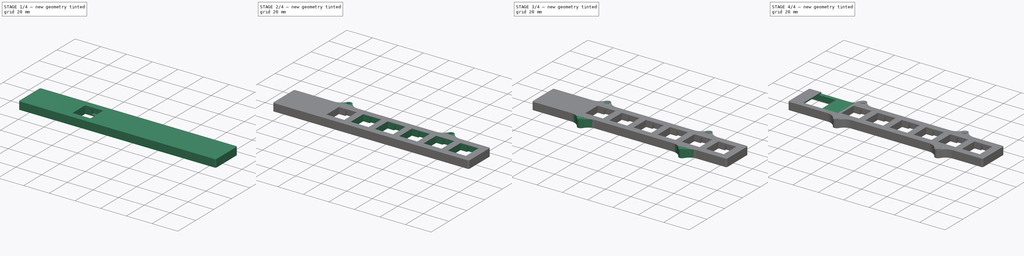
[diagram: build sequence overview — one tinted view per stage of 4, left to right]
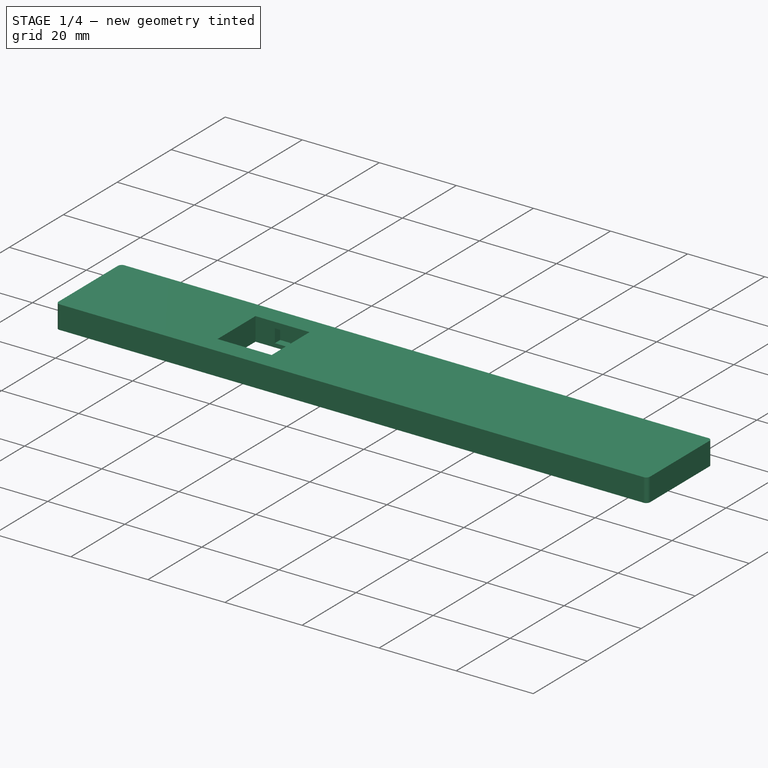
[diagram: stage 1 of 4 — iso view after this stage's code; geometry added in this stage tinted green]
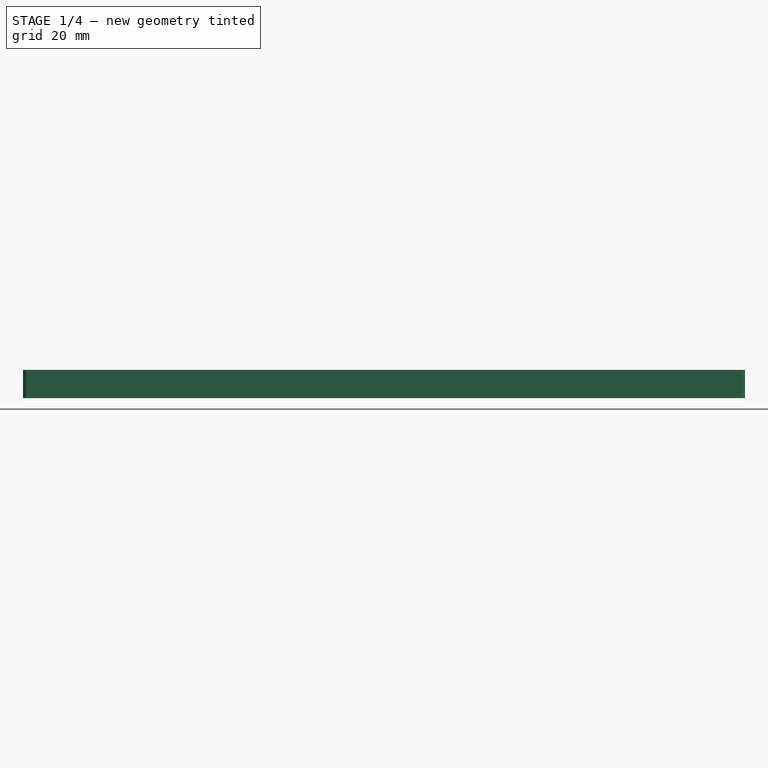
[diagram: stage 1 of 4 — front view after this stage's code; geometry added in this stage tinted green]
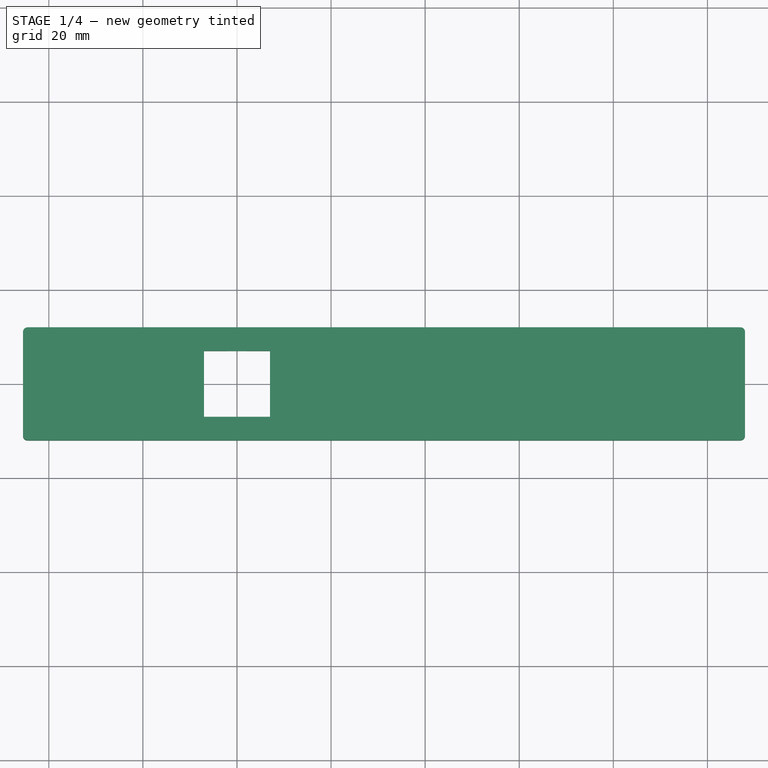
[diagram: stage 1 of 4 — top view after this stage's code; geometry added in this stage tinted green]
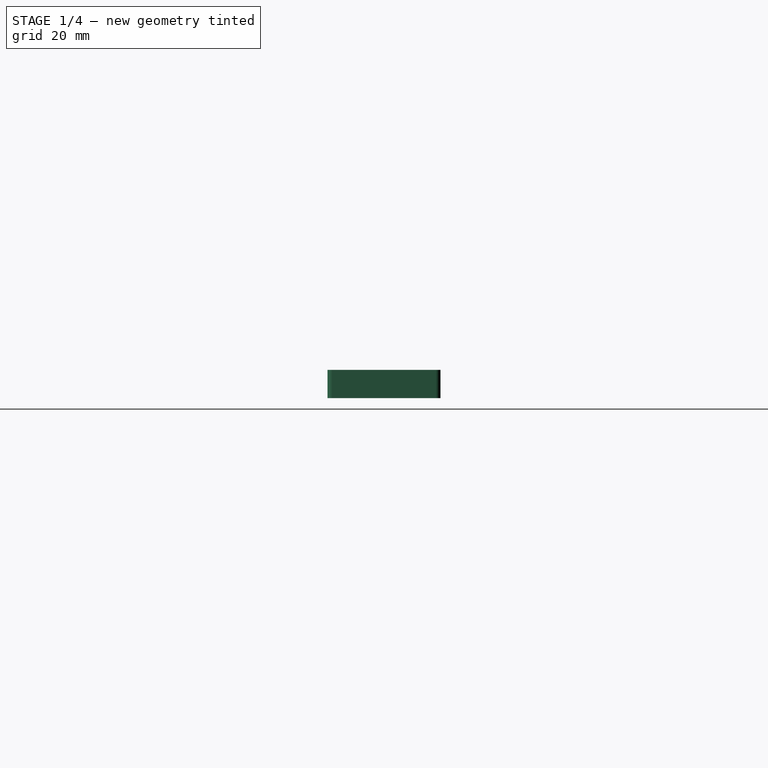
[diagram: stage 1 of 4 — right view after this stage's code; geometry added in this stage tinted green]
FCSTD DOCUMENT  (FreeCAD 1.0R39109 (Git))
Label: Plate
License: All rights reserved
LicenseURL: http://en.wikipedia.org/wiki/All_rights_reserved
objects: Sketcher::SketchObject×9, PartDesign::Pocket×6, PartDesign::Pad×2, PartDesign::LinearPattern×1, PartDesign::Mirrored×1, PartDesign::Chamfer×1, PartDesign::Body×1
note: 50 computed .brp shape members not serialized (recipe doc carries the construction recipe); baked Part::Feature solids carry a one-line shape summary decoded from their .brp

FEATURE [Sketcher::SketchObject] Sketch
  ArcFitTolerance = 0
  AttachmentSupport = -> [XY_Plane]
  FullyConstrained = true
  MakeInternals = false
  MapMode = 5
  sketch-geometry (9):
    g0: LineSegment StartX=-45.5 StartY=11 StartZ=0 EndX=-45.5 EndY=-11 EndZ=0
    g1: LineSegment StartX=-44.5 StartY=-12 StartZ=0 EndX=107 EndY=-12 EndZ=0
    g2: LineSegment StartX=-44.5 StartY=12 StartZ=0 EndX=107 EndY=12 EndZ=0
    g3: LineSegment StartX=108 StartY=11 StartZ=0 EndX=108 EndY=-11 EndZ=0
    g4: ArcOfCircle CenterX=-44.5 CenterY=11 CenterZ=0 NormalX=0 NormalY=0 NormalZ=1 AngleXU=0 Radius=1 StartAngle=1.5708 EndAngle=3.14159
    g5: ArcOfCircle CenterX=-44.5 CenterY=-11 CenterZ=0 NormalX=0 NormalY=0 NormalZ=1 AngleXU=0 Radius=1 StartAngle=3.14159 EndAngle=4.71239
    g6: ArcOfCircle CenterX=107 CenterY=-11 CenterZ=0 NormalX=0 NormalY=0 NormalZ=1 AngleXU=0 Radius=1 StartAngle=4.71239 EndAngle=6.28319
    g7: ArcOfCircle CenterX=107 CenterY=11 CenterZ=0 NormalX=0 NormalY=0 NormalZ=1 AngleXU=0 Radius=1 StartAngle=4e-16 EndAngle=1.5708
    g8: GeomPoint [constr] X=-45.5 Y=0 Z=0
  constraints (21):
    c: Vertical(g0)
    c: Horizontal(g1)
    c: Horizontal(g2)
    c: Vertical(g3)
    c: Tangent(g7,g2) = 1.5708
    c: Tangent(g7,g3) = 1.5708
    c: Tangent(g6,g1) = -1.5708
    c: Tangent(g5,g0) = -1.5708
    c: Tangent(g4,g2) = 1.5708
    c: Tangent(g5,g1) = -1.5708
    c: Radius(g4) = 1
    c: Tangent(g4,g0) = -1.5708
    c: Equal(g5,g4)
    c: Tangent(g6,g3) = 1.5708
    c: Equal(g4,g7)
    c: Equal(g4,g6)
    c: DistanceY(g1,g2) = 24
    c: Symmetric(g0,g0,g8)
    c: PointOnObject(g8,g-1)
    c: DistanceX(g8,g-1) = 45.5
    c: DistanceX(g-1,g6) = 107
FEATURE [PartDesign::Pad] Pad  label="Plate"
  Direction = (0,0,1)
  Length = 5
  Length2 = 1
  Profile = -> Sketch
  ReferenceAxis = -> Sketch [N_Axis]
  Suppressed = false
  Type = 4
FEATURE [Sketcher::SketchObject] Sketch001
  ArcFitTolerance = 0
  AttachmentSupport = -> [XY_Plane]
  FullyConstrained = true
  MakeInternals = false
  MapMode = 5
  sketch-geometry (4):
    g0: LineSegment StartX=-7.025 StartY=7.025 StartZ=0 EndX=7.025 EndY=7.025 EndZ=0
    g1: LineSegment StartX=7.025 StartY=7.025 StartZ=0 EndX=7.025 EndY=-7.025 EndZ=0
    g2: LineSegment StartX=7.025 StartY=-7.025 StartZ=0 EndX=-7.025 EndY=-7.025 EndZ=0
    g3: LineSegment StartX=-7.025 StartY=-7.025 StartZ=0 EndX=-7.025 EndY=7.025 EndZ=0
  constraints (10):
    c: Coincident(g0,g1)
    c: Coincident(g1,g2)
    c: Coincident(g2,g3)
    c: Coincident(g3,g0)
    c: Horizontal(g0)
    c: Vertical(g1)
    c: Symmetric(g0,g2,g-1)
    c: Symmetric(g2,g1,g-2)
    c: DistanceX(g2,g2) = 14.05
    c: Equal(g3,g2)
FEATURE [PartDesign::Pocket] Pocket  label="SwitchCutout"
  BaseFeature = -> Pad
  Direction = (0,0,-1)
  Length = 5
  Length2 = 5
  Midplane = true
  Profile = -> Sketch001
  ReferenceAxis = -> Sketch001 [N_Axis]
  Suppressed = false
  Type = 1
FEATURE [Sketcher::SketchObject] Sketch002
  ArcFitTolerance = 0
  AttachmentSupport = -> [XY_Plane]
  FullyConstrained = true
  MakeInternals = false
  MapMode = 5
  sketch-geometry (9):
    g0: LineSegment StartX=-43.6 StartY=9.1 StartZ=0 EndX=-43.6 EndY=-9.1 EndZ=0
    g1: LineSegment StartX=-42.6 StartY=-10.1 StartZ=0 EndX=104.1 EndY=-10.1 EndZ=0
    g2: LineSegment StartX=-42.6 StartY=10.1 StartZ=0 EndX=104.1 EndY=10.1 EndZ=0
    g3: LineSegment StartX=105.1 StartY=9.1 StartZ=0 EndX=105.1 EndY=-9.1 EndZ=0
    g4: ArcOfCircle CenterX=-42.6 CenterY=9.1 CenterZ=0 NormalX=0 NormalY=0 NormalZ=1 AngleXU=0 Radius=1 StartAngle=1.5708 EndAngle=3.14159
    g5: ArcOfCircle CenterX=-42.6 CenterY=-9.1 CenterZ=0 NormalX=0 NormalY=0 NormalZ=1 AngleXU=0 Radius=1 StartAngle=3.14159 EndAngle=4.71239
    g6: ArcOfCircle CenterX=104.1 CenterY=-9.1 CenterZ=0 NormalX=0 NormalY=0 NormalZ=1 AngleXU=0 Radius=1 StartAngle=4.71239 EndAngle=6.28319
    g7: ArcOfCircle CenterX=104.1 CenterY=9.1 CenterZ=0 NormalX=0 NormalY=0 NormalZ=1 AngleXU=0 Radius=1 StartAngle=1.23436e-11 EndAngle=1.5708
    g8: GeomPoint [constr] X=-43.6 Y=0 Z=0
  constraints (21):
    c: Vertical(g0)
    c: Horizontal(g1)
    c: Horizontal(g2)
    c: Vertical(g3)
    c: Tangent(g7,g2) = 1.5708
    c: Tangent(g7,g3) = 1.5708
    c: Tangent(g6,g1) = -1.5708
    c: Tangent(g5,g0) = -1.5708
    c: Tangent(g4,g2) = 1.5708
    c: Tangent(g5,g1) = -1.5708
    c: Radius(g4) = 1
    c: Tangent(g4,g0) = -1.5708
    c: Equal(g5,g4)
    c: Tangent(g6,g3) = 1.5708
    c: Equal(g4,g7)
    c: Equal(g4,g6)
    c: DistanceY(g1,g2) = 20.2
    c: Symmetric(g0,g0,g8)
    c: PointOnObject(g8,g-1)
    c: DistanceX(g8,g-1) = 43.6
    c: DistanceX(g-1,g3) = 105.1
FEATURE [Sketcher::SketchObject] Sketch003  label="OledFpc"
  ArcFitTolerance = 0
  AttachmentSupport = -> [XY_Plane]
  FullyConstrained = true
  MakeInternals = false
  MapMode = 5
  sketch-geometry (5):
    g0: LineSegment StartX=-30.35 StartY=0 StartZ=0 EndX=-14.65 EndY=0 EndZ=0
    g1: LineSegment StartX=-14.65 StartY=0 StartZ=0 EndX=-14.65 EndY=-50 EndZ=0
    g2: LineSegment StartX=-14.65 StartY=-50 StartZ=0 EndX=-30.35 EndY=-50 EndZ=0
    g3: LineSegment StartX=-30.35 StartY=-50 StartZ=0 EndX=-30.35 EndY=0 EndZ=0
    g4: GeomPoint [constr] X=-22.5 Y=0 Z=0
  constraints (13):
    c: Coincident(g0,g1)
    c: Coincident(g1,g2)
    c: Coincident(g2,g3)
    c: Coincident(g3,g0)
    c: Horizontal(g0)
    c: Horizontal(g2)
    c: Vertical(g1)
    c: Vertical(g3)
    c: PointOnObject(g0,g-1)
    c: DistanceY(g1,g1) = 50
    c: DistanceX(g2,g2) = 15.7
    c: Symmetric(g0,g0,g4)
    c: DistanceX(g4,g-1) = 22.5
FEATURE [Sketcher::SketchObject] Sketch004
  ArcFitTolerance = 0
  AttachmentSupport = -> [XY_Plane]
  FullyConstrained = true
  MakeInternals = false
  MapMode = 5
  sketch-geometry (4):
    g0: LineSegment StartX=-2 StartY=9 StartZ=0 EndX=2 EndY=9 EndZ=0
    g1: LineSegment StartX=2 StartY=9 StartZ=0 EndX=2 EndY=-9 EndZ=0
    g2: LineSegment StartX=2 StartY=-9 StartZ=0 EndX=-2 EndY=-9 EndZ=0
    g3: LineSegment StartX=-2 StartY=-9 StartZ=0 EndX=-2 EndY=9 EndZ=0
  constraints (10):
    c: Coincident(g0,g1)
    c: Coincident(g1,g2)
    c: Coincident(g2,g3)
    c: Coincident(g3,g0)
    c: Horizontal(g0)
    c: Vertical(g1)
    c: Symmetric(g0,g2,g-1)
    c: Symmetric(g2,g1,g-2)
    c: DistanceX(g2,g2) = 4
    c: DistanceY(g3,g3) = 18
FEATURE [PartDesign::Pocket] Pocket002  label="KeyClipPocket"
  BaseFeature = -> Pocket
  Direction = (0,0,-1)
  Length = 3.5
  Length2 = 5
  Profile = -> Sketch004
  ReferenceAxis = -> Sketch004 [N_Axis]
  Refine = true
  Reversed = true
  Suppressed = false
  Type = 0
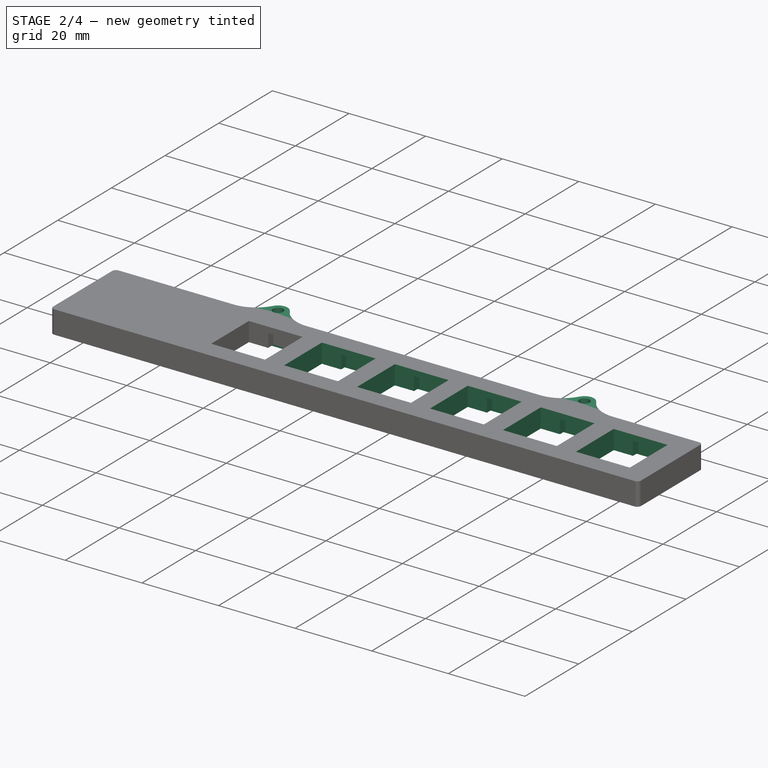
[diagram: stage 2 of 4 — iso view after this stage's code; geometry added in this stage tinted green]
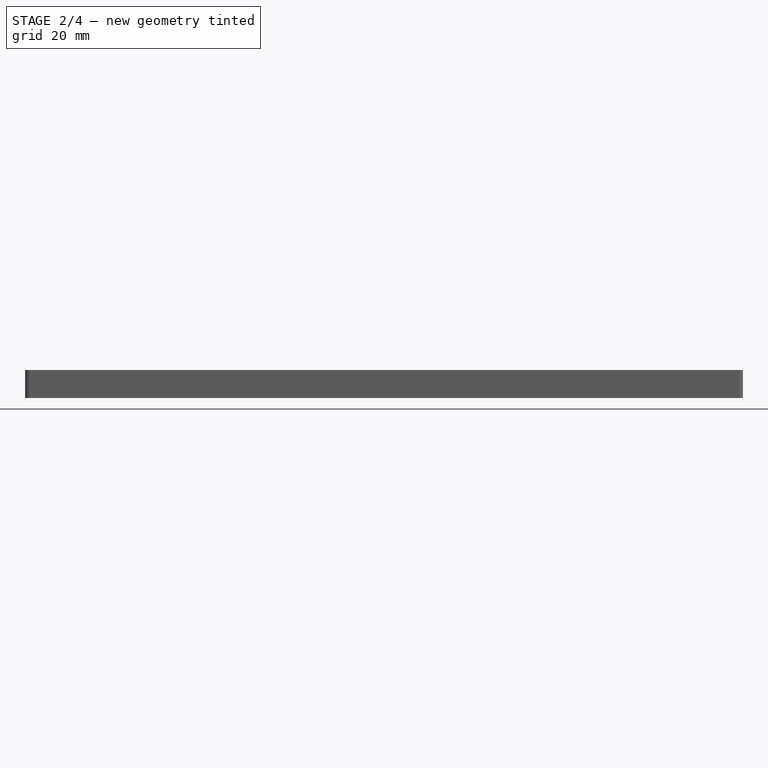
[diagram: stage 2 of 4 — front view after this stage's code; geometry added in this stage tinted green]
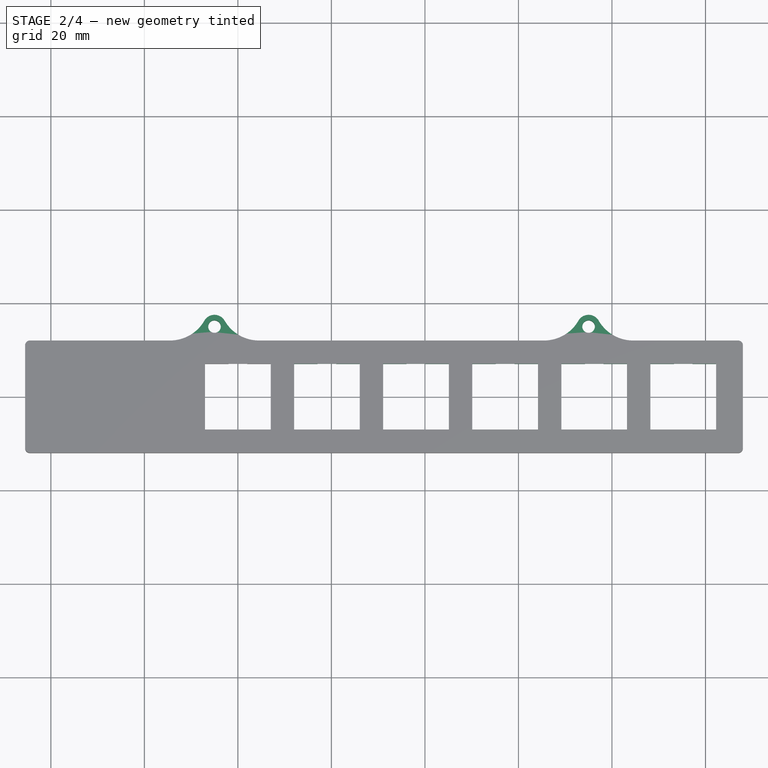
[diagram: stage 2 of 4 — top view after this stage's code; geometry added in this stage tinted green]
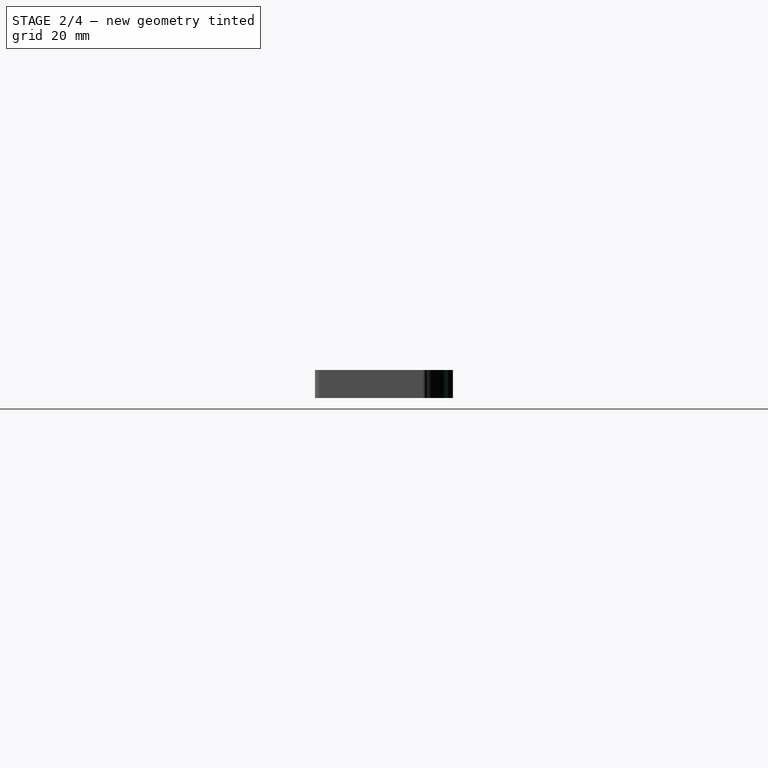
[diagram: stage 2 of 4 — right view after this stage's code; geometry added in this stage tinted green]
FEATURE [PartDesign::LinearPattern] LinearPattern
  BaseFeature = -> Pocket002
  Direction = -> Sketch001 [H_Axis]
  Length = 95.25
  Mode = 0
  Occurrences = 6
  Offset = 19.05
  Originals = -> [Pocket,Pocket002]
  Suppressed = false
  TransformMode = 0
FEATURE [PartDesign::Pocket] Pocket001  label="BoardPocket"
  BaseFeature = -> LinearPattern
  Direction = (0,0,-1)
  Length = 5
  Length2 = 5
  Profile = -> Sketch002
  ReferenceAxis = -> Sketch002 [N_Axis]
  Suppressed = false
  Type = 1
FEATURE [Sketcher::SketchObject] Sketch005
  ArcFitTolerance = 1e-06
  AttachmentSupport = -> [XY_Plane]
  FullyConstrained = true
  MakeInternals = false
  MapMode = 5
  sketch-geometry (13):
    g0: Circle CenterX=75 CenterY=15 CenterZ=0 NormalX=0 NormalY=0 NormalZ=1 AngleXU=0 Radius=1.35
    g1: GeomPoint X=105 Y=12 Z=0
    g2: LineSegment StartX=65.4737 StartY=12 StartZ=0 EndX=84.5263 EndY=12 EndZ=0
    g3: ArcOfCircle CenterX=75 CenterY=15 CenterZ=0 NormalX=0 NormalY=0 NormalZ=1 AngleXU=0 Radius=2.5 StartAngle=0.523599 EndAngle=2.61799
    g4: ArcOfCircle CenterX=65.4737 CenterY=20.5 CenterZ=0 NormalX=0 NormalY=0 NormalZ=1 AngleXU=0 Radius=8.5 StartAngle=4.71239 EndAngle=5.75959
    g5: ArcOfCircle CenterX=84.5263 CenterY=20.5 CenterZ=0 NormalX=0 NormalY=0 NormalZ=1 AngleXU=0 Radius=8.5 StartAngle=3.66519 EndAngle=4.71239
    g6: LineSegment [constr] StartX=75 StartY=15 StartZ=0 EndX=72.8349 EndY=16.25 EndZ=0
    g7: LineSegment StartX=-14.5263 StartY=12 StartZ=0 EndX=4.52628 EndY=12 EndZ=0
    g8: Circle CenterX=-5 CenterY=15 CenterZ=0 NormalX=0 NormalY=0 NormalZ=1 AngleXU=0 Radius=1.35
    g9: ArcOfCircle CenterX=-5 CenterY=15 CenterZ=0 NormalX=0 NormalY=0 NormalZ=1 AngleXU=0 Radius=2.5 StartAngle=0.523599 EndAngle=2.61799
    g10: ArcOfCircle CenterX=-14.5263 CenterY=20.5 CenterZ=0 NormalX=0 NormalY=0 NormalZ=1 AngleXU=0 Radius=8.5 StartAngle=4.71239 EndAngle=5.75959
    g11: ArcOfCircle CenterX=4.52628 CenterY=20.5 CenterZ=0 NormalX=0 NormalY=0 NormalZ=1 AngleXU=0 Radius=8.5 StartAngle=3.66519 EndAngle=4.71239
    g12: LineSegment [constr] StartX=-5 StartY=15 StartZ=0 EndX=75 EndY=15 EndZ=0
  constraints (32):
    c: Horizontal(g2)
    c: Coincident(g3,g0)
    c: Tangent(g4,g2) = -1.5708
    c: Tangent(g5,g2) = -1.5708
    c: Tangent(g4,g3) = 1.5708
    c: Tangent(g5,g3) = 1.5708
    c: Diameter(g0) = 2.7
    c: Diameter(g3) = 5
    c: Equal(g4,g5)
    c: Coincident(g6,g0)
    c: Coincident(g6,g3)
    c: Angle(g6,g2) = 0.523599
    c: PointOnObject(g1,g2)
    c: DistanceX(g0,g1) = 30
    c: DistanceX(g-1,g1) = 105
    c: Horizontal(g7)
    c: Coincident(g9,g8)
    c: Tangent(g11,g9) = 1.5708
    c: Tangent(g10,g9) = 1.5708
    c: Tangent(g10,g7) = -1.5708
    c: Tangent(g11,g7) = -1.5708
    c: Equal(g9,g3)
    c: Equal(g8,g0)
    c: Equal(g7,g2)
    c: Equal(g11,g5)
    c: Equal(g10,g11)
    c: DistanceY(g-1,g0) = 15
    c: Coincident(g12,g8)
    c: Coincident(g12,g0)
    c: Horizontal(g12)
    c: DistanceX(g8,g0) = 80
    c: DistanceY(g-1,g7) = 12
FEATURE [PartDesign::Pad] Pad001  label="MountingWingPocket"
  BaseFeature = -> Pocket001
  Direction = (0,0,1)
  Length = 5
  Length2 = 1
  Profile = -> Sketch005
  ReferenceAxis = -> Sketch005 [N_Axis]
  Refine = true
  Suppressed = false
  Type = 4
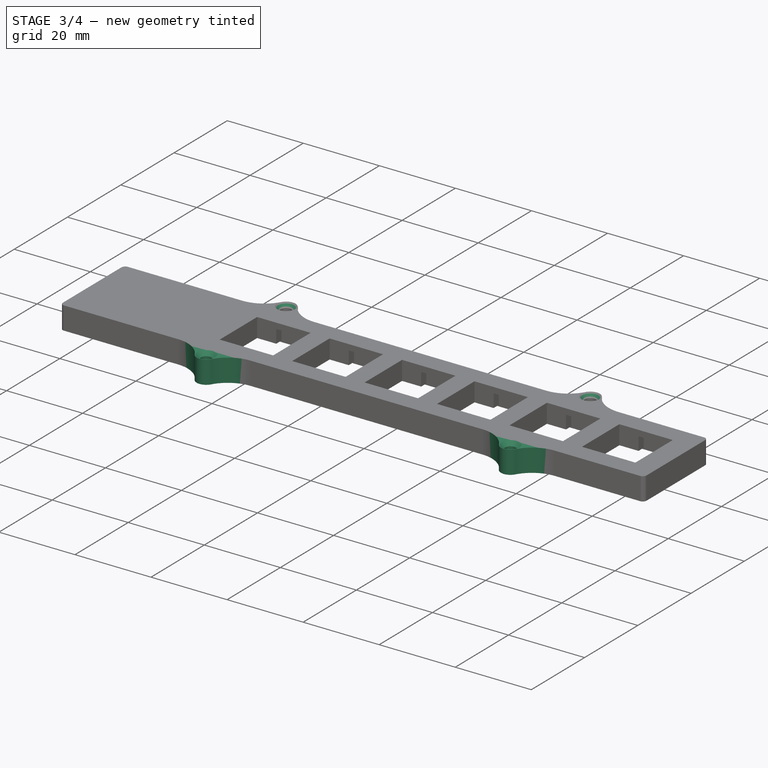
[diagram: stage 3 of 4 — iso view after this stage's code; geometry added in this stage tinted green]
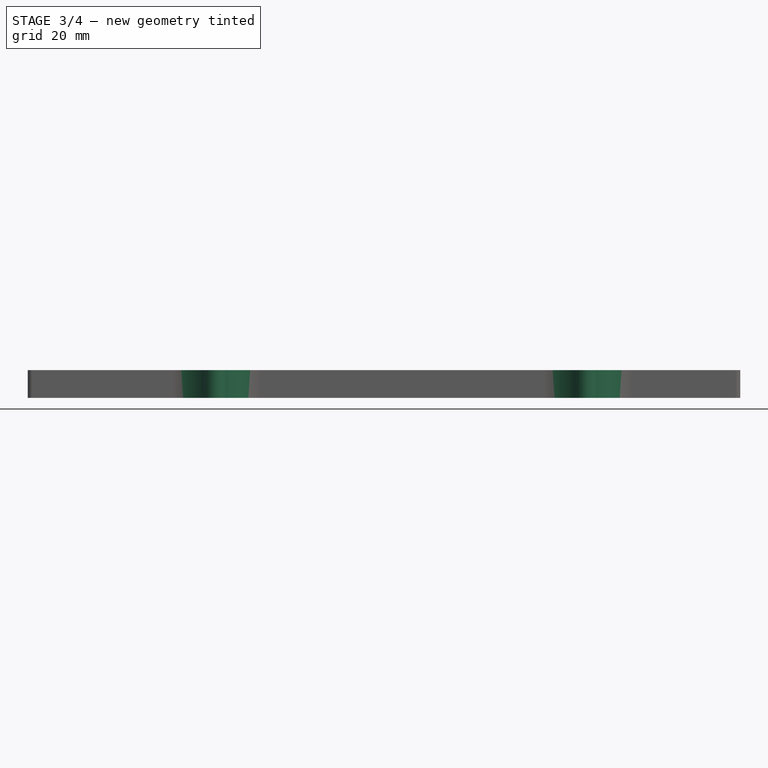
[diagram: stage 3 of 4 — front view after this stage's code; geometry added in this stage tinted green]
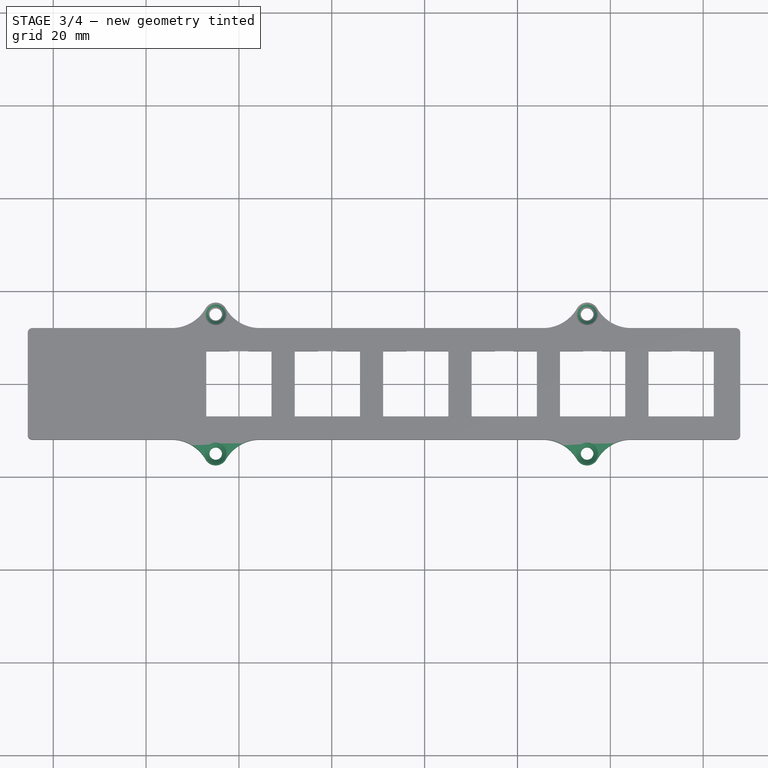
[diagram: stage 3 of 4 — top view after this stage's code; geometry added in this stage tinted green]
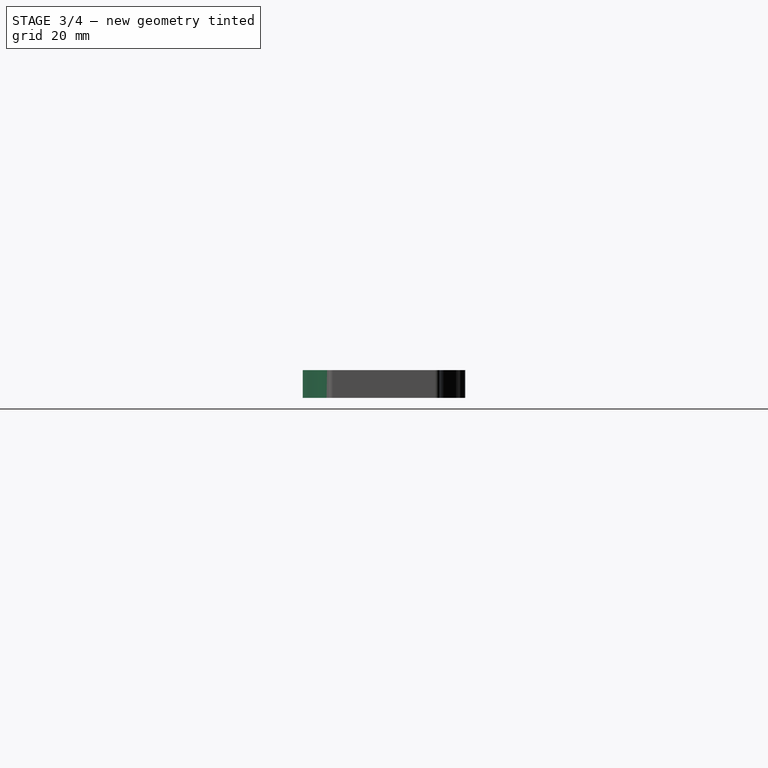
[diagram: stage 3 of 4 — right view after this stage's code; geometry added in this stage tinted green]
FEATURE [PartDesign::Mirrored] Mirrored
  BaseFeature = -> Pad001
  MirrorPlane = -> XZ_Plane
  Originals = -> [Pad001]
  Refine = true
  Suppressed = false
  TransformMode = 0
FEATURE [PartDesign::Chamfer] Chamfer
  Angle = 45
  Base = -> Mirrored [Edge322,Edge318,Edge320,Edge324]
  BaseFeature = -> Mirrored
  ChamferType = 0
  FlipDirection = false
  Refine = true
  Size = 1
  Size2 = 1
  SupportTransform = false
  Suppressed = false
  UseAllEdges = false
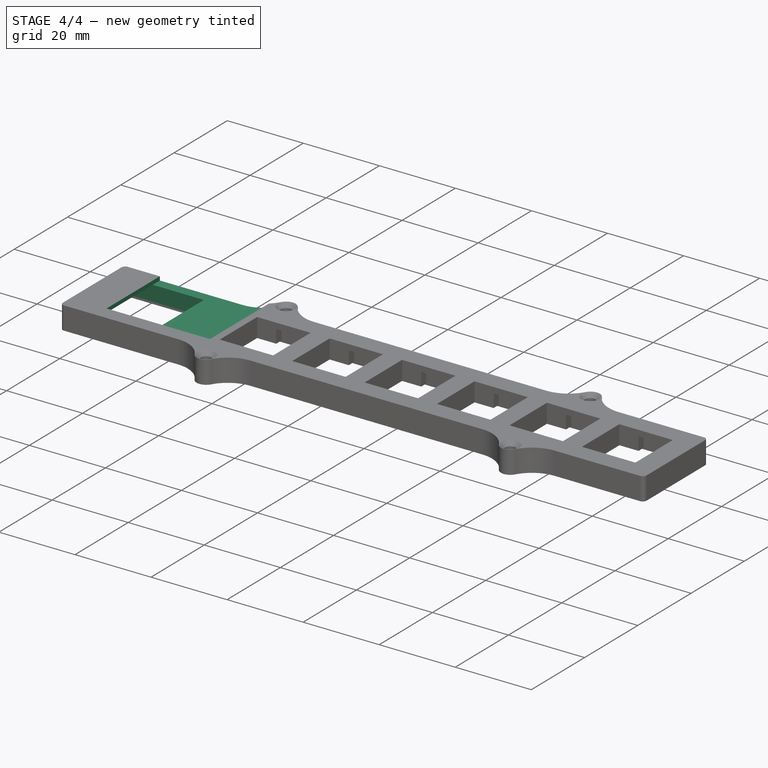
[diagram: stage 4 of 4 — iso view after this stage's code; geometry added in this stage tinted green]
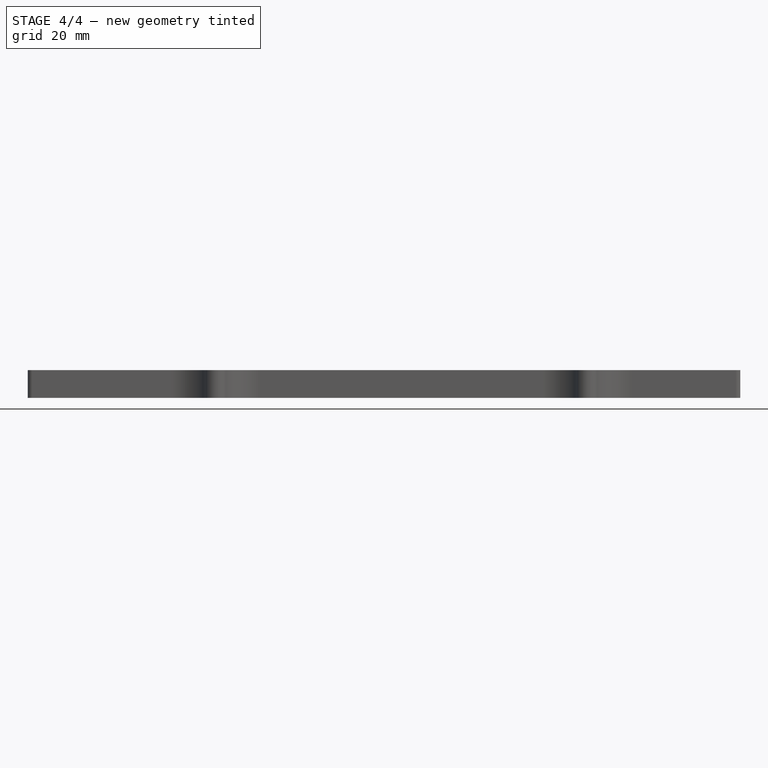
[diagram: stage 4 of 4 — front view after this stage's code; geometry added in this stage tinted green]
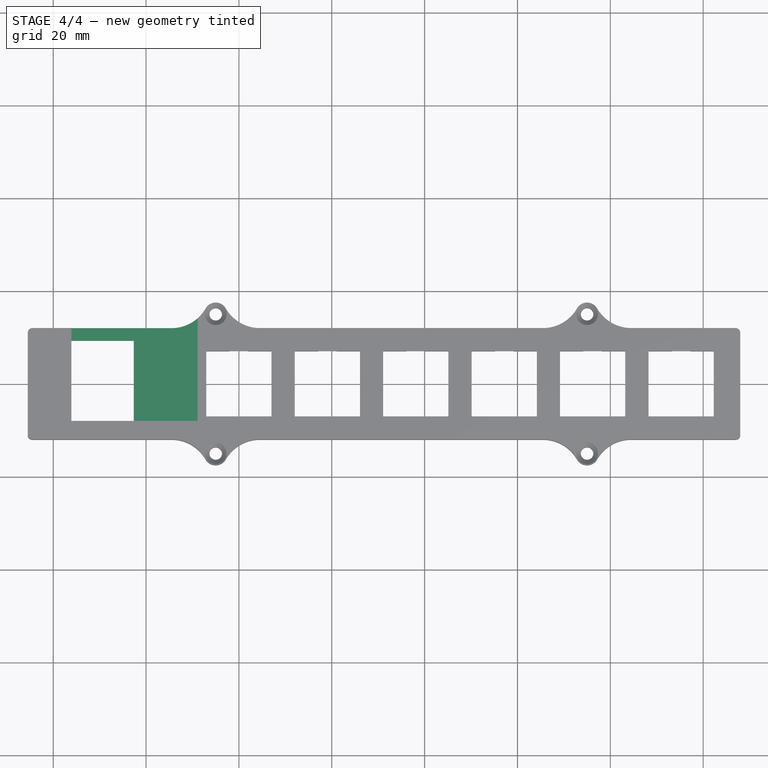
[diagram: stage 4 of 4 — top view after this stage's code; geometry added in this stage tinted green]
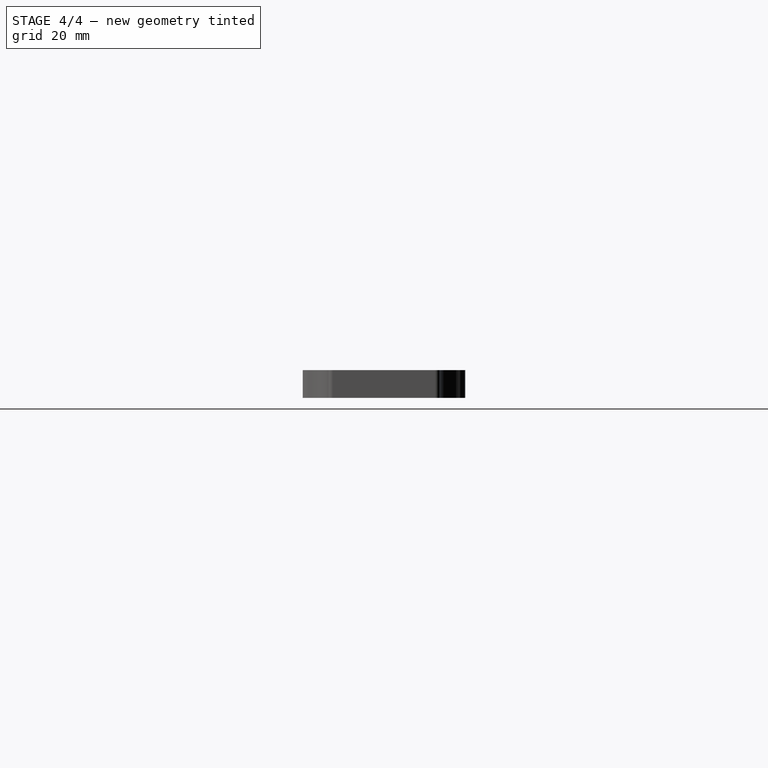
[diagram: stage 4 of 4 — right view after this stage's code; geometry added in this stage tinted green]
FEATURE [Sketcher::SketchObject] Sketch006
  ArcFitTolerance = 1e-06
  AttachmentSupport = -> [XY_Plane]
  FullyConstrained = true
  MakeInternals = false
  MapMode = 5
  sketch-geometry (4):
    g0: LineSegment StartX=-43.42 StartY=9.32 StartZ=0 EndX=-43.42 EndY=-9.32 EndZ=0
    g1: LineSegment StartX=-43.42 StartY=-9.32 StartZ=0 EndX=-22.65 EndY=-9.32 EndZ=0
    g2: LineSegment StartX=-22.65 StartY=-9.32 StartZ=0 EndX=-22.65 EndY=9.32 EndZ=0
    g3: LineSegment StartX=-22.65 StartY=9.32 StartZ=0 EndX=-43.42 EndY=9.32 EndZ=0
  constraints (11):
    c: Coincident(g0,g1)
    c: Coincident(g1,g2)
    c: Coincident(g2,g3)
    c: Coincident(g3,g0)
    c: Vertical(g0)
    c: Horizontal(g1)
    c: Horizontal(g3)
    c: Symmetric(g1,g2,g-1)
    c: DistanceX(g0,g-1) = 43.42
    c: DistanceY(g2,g2) = 18.64
    c: DistanceX(g2,g-1) = 22.65
FEATURE [PartDesign::Pocket] Pocket003  label="EspCutout"
  BaseFeature = -> Chamfer
  Direction = (0,0,-1)
  Length = 4
  Length2 = 5
  Profile = -> Sketch006
  ReferenceAxis = -> Sketch006 [N_Axis]
  Refine = true
  Reversed = true
  Suppressed = false
  Type = 0
FEATURE [Sketcher::SketchObject] Sketch007
  ArcFitTolerance = 1e-06
  AttachmentSupport = -> [XY_Plane]
  FullyConstrained = true
  MakeInternals = false
  MapMode = 5
  sketch-geometry (10):
    g0: LineSegment StartX=-23 StartY=-7.5 StartZ=0 EndX=-23 EndY=-8.5 EndZ=0
    g1: LineSegment StartX=-23 StartY=-8.5 StartZ=0 EndX=-11 EndY=-8.5 EndZ=0
    g2: LineSegment StartX=-11 StartY=-8.5 StartZ=0 EndX=-11 EndY=-7.5 EndZ=0
    g3: LineSegment StartX=-11 StartY=-7.5 StartZ=0 EndX=-23 EndY=-7.5 EndZ=0
    g4: LineSegment StartX=83.5 StartY=-7.5 StartZ=0 EndX=83.5 EndY=-8.5 EndZ=0
    g5: LineSegment StartX=83.5 StartY=-8.5 StartZ=0 EndX=87.5 EndY=-8.5 EndZ=0
    g6: LineSegment StartX=87.5 StartY=-8.5 StartZ=0 EndX=87.5 EndY=-7.5 EndZ=0
    g7: LineSegment StartX=87.5 StartY=-7.5 StartZ=0 EndX=83.5 EndY=-7.5 EndZ=0
    g8: GeomPoint X=-17 Y=-8 Z=0
    g9: GeomPoint X=85.5 Y=-8 Z=0
  constraints (26):
    c: Coincident(g0,g1)
    c: Coincident(g1,g2)
    c: Coincident(g2,g3)
    c: Coincident(g3,g0)
    c: Vertical(g0)
    c: Vertical(g2)
    c: Horizontal(g1)
    c: Horizontal(g3)
    c: Coincident(g4,g5)
    c: Coincident(g5,g6)
    c: Coincident(g6,g7)
    c: Coincident(g7,g4)
    c: Vertical(g4)
    c: Vertical(g6)
    c: Horizontal(g5)
    c: Horizontal(g7)
    c: PointOnObject(g4,g3)
    c: DistanceX(g3,g3) = 12
    c: DistanceX(g7,g7) = 4
    c: DistanceY(g6,g6) = 1
    c: PointOnObject(g4,g1)
    c: Symmetric(g0,g1,g8)
    c: Symmetric(g4,g5,g9)
    c: DistanceX(g8,g-1) = 17
    c: DistanceY(g-1,g8) = -8
    c: DistanceX(g-1,g9) = 85.5
FEATURE [PartDesign::Pocket] Pocket004  label="HeaderCutout"
  BaseFeature = -> Pocket003
  Direction = (0,0,-1)
  Length = 3
  Length2 = 5
  Profile = -> Sketch007
  ReferenceAxis = -> Sketch007 [N_Axis]
  Refine = true
  Reversed = true
  Suppressed = false
  Type = 0
FEATURE [Sketcher::SketchObject] Sketch008
  ArcFitTolerance = 1e-06
  AttachmentOffset = pos=(0,0,4) rot=(0,0,1;0rad)
  AttachmentSupport = -> [XY_Plane]
  FullyConstrained = true
  MakeInternals = false
  MapMode = 5
  Placement = pos=(0,0,4) rot=(0,0,1;0rad)
  sketch-geometry (4):
    g0: LineSegment StartX=-36.1 StartY=-8 StartZ=0 EndX=-36.1 EndY=20 EndZ=0
    g1: LineSegment StartX=-36.1 StartY=20 StartZ=0 EndX=-8.9 EndY=20 EndZ=0
    g2: LineSegment StartX=-8.9 StartY=20 StartZ=0 EndX=-8.9 EndY=-8 EndZ=0
    g3: LineSegment StartX=-8.9 StartY=-8 StartZ=0 EndX=-36.1 EndY=-8 EndZ=0
  constraints (12):
    c: Coincident(g0,g1)
    c: Coincident(g1,g2)
    c: Coincident(g2,g3)
    c: Coincident(g3,g0)
    c: Vertical(g0)
    c: Vertical(g2)
    c: Horizontal(g1)
    c: Horizontal(g3)
    c: DistanceX(g0,g-1) = 36.1
    c: DistanceX(g2,g-1) = 8.9
    c: DistanceY(g-1,g2) = -8
    c: DistanceY(g1,g-1) = -20
FEATURE [PartDesign::Pocket] Pocket005  label="OledCutout"
  BaseFeature = -> Pocket004
  Direction = (0,0,-1)
  Length = 5
  Length2 = 5
  Profile = -> Sketch008
  ReferenceAxis = -> Sketch008 [N_Axis]
  Refine = true
  Reversed = true
  Suppressed = false
  Type = 1
FEATURE [PartDesign::Body] Body
  AllowCompound = false
  Group = -> [Sketch,Pad,Sketch001,Pocket,Pocket002,LinearPattern,Sketch002,Pocket001,Sketch003,Sketch004,Sketch005,Pad001,Mirrored,Chamfer,Sketch006,Pocket003,Sketch007,Pocket004,Sketch008,Pocket005]
  Origin = -> Origin
  Tip = -> Pocket005
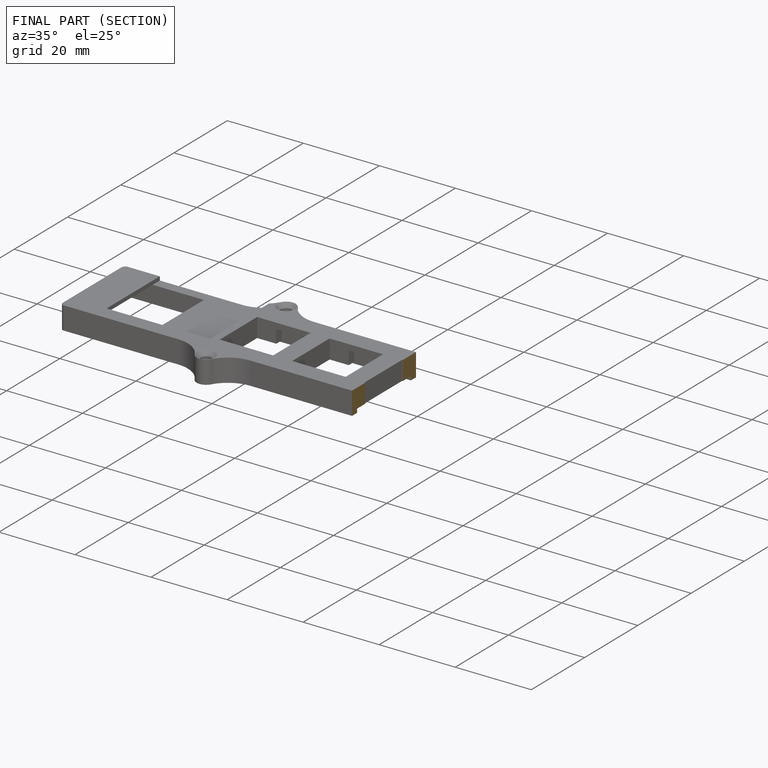
[diagram: finished part — half-section view (interior)]
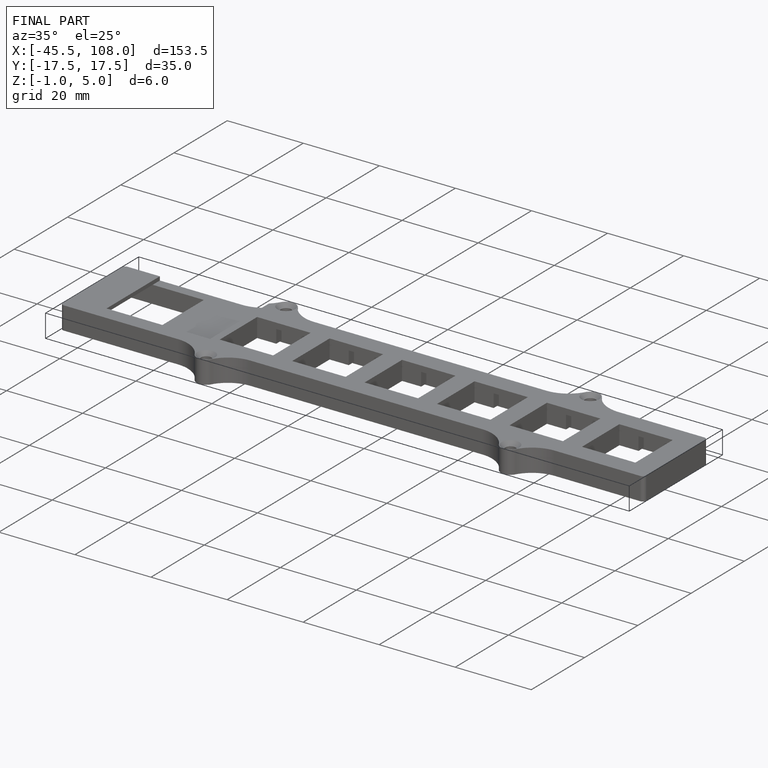
[diagram: finished part — iso view with bounding-box wireframe]
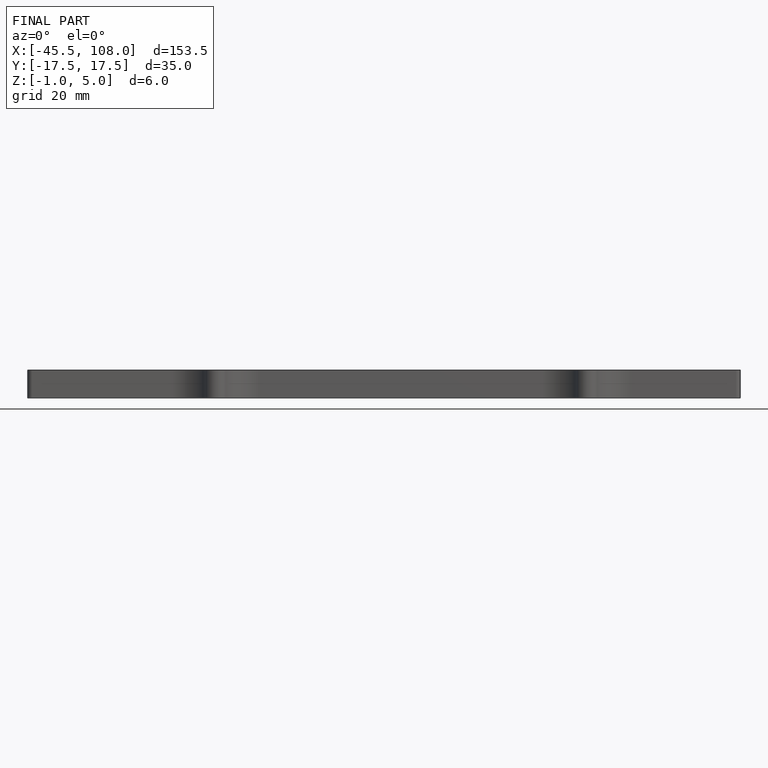
[diagram: finished part — front view with bounding-box wireframe]
